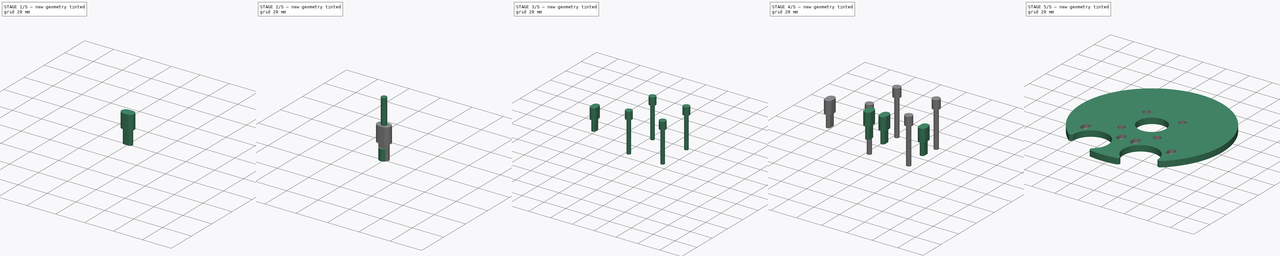
[diagram: build sequence overview — one tinted view per stage of 5, left to right]
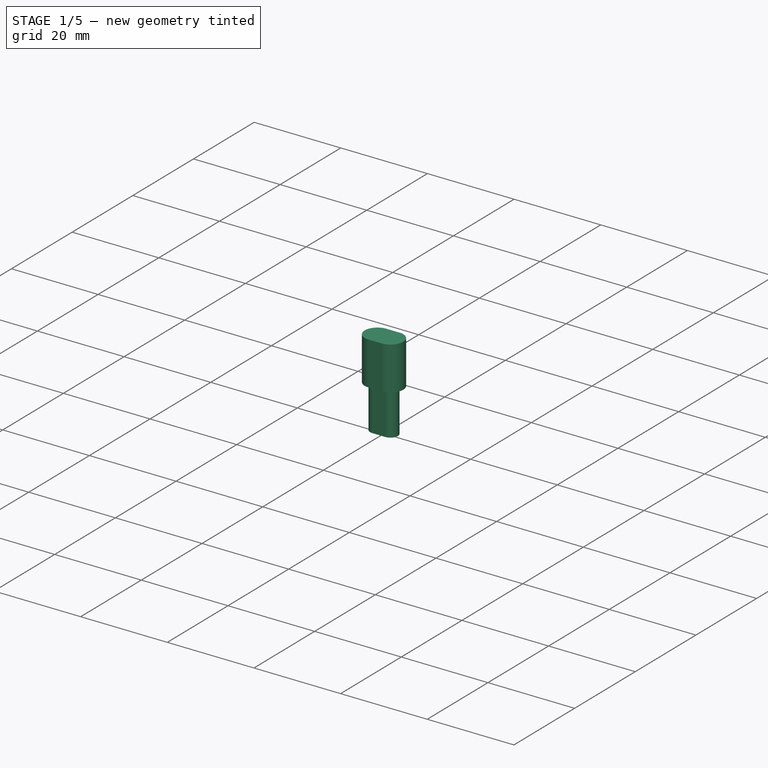
[diagram: stage 1 of 5 — iso view after this stage's code; geometry added in this stage tinted green]
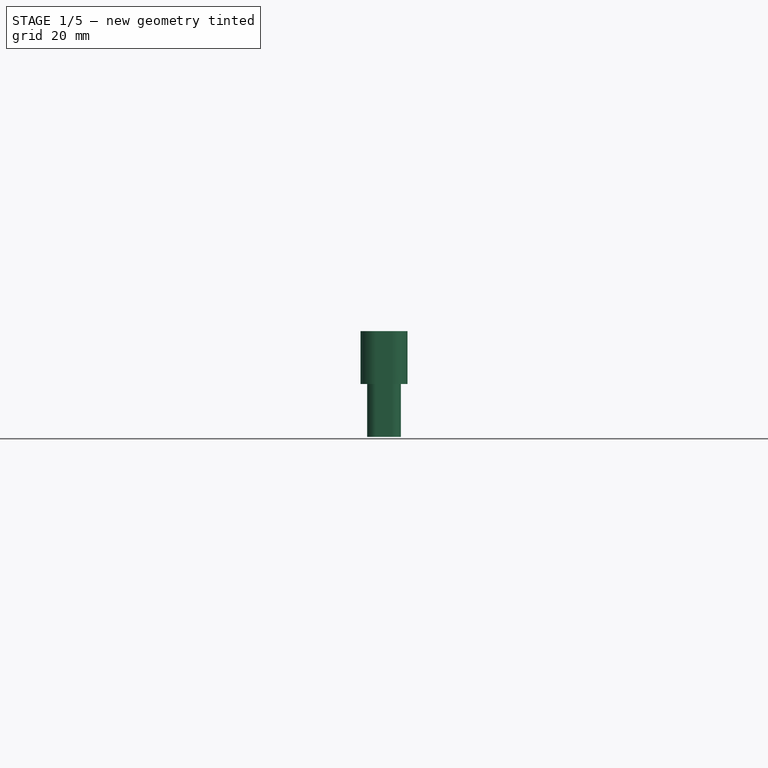
[diagram: stage 1 of 5 — front view after this stage's code; geometry added in this stage tinted green]
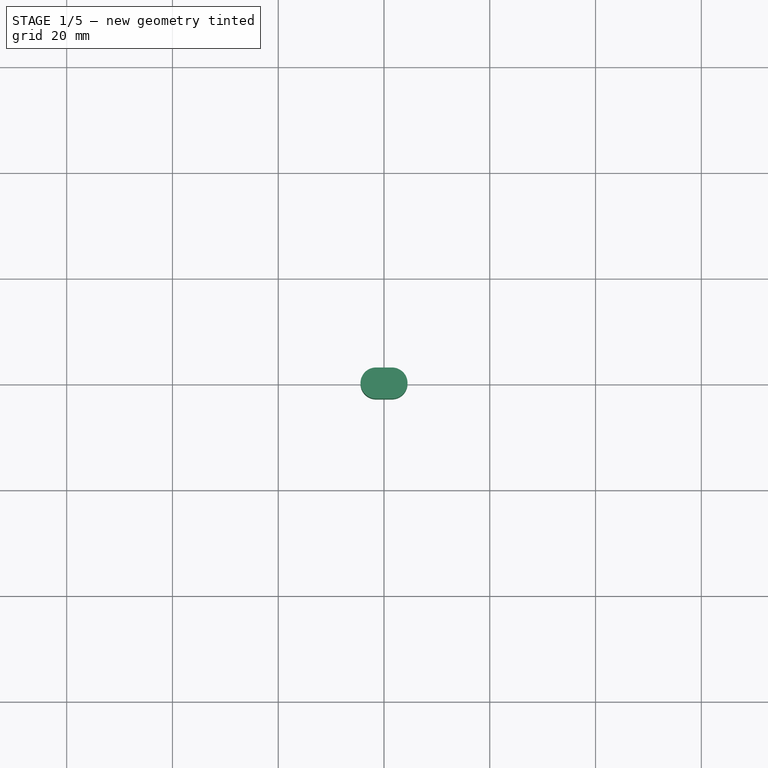
[diagram: stage 1 of 5 — top view after this stage's code; geometry added in this stage tinted green]
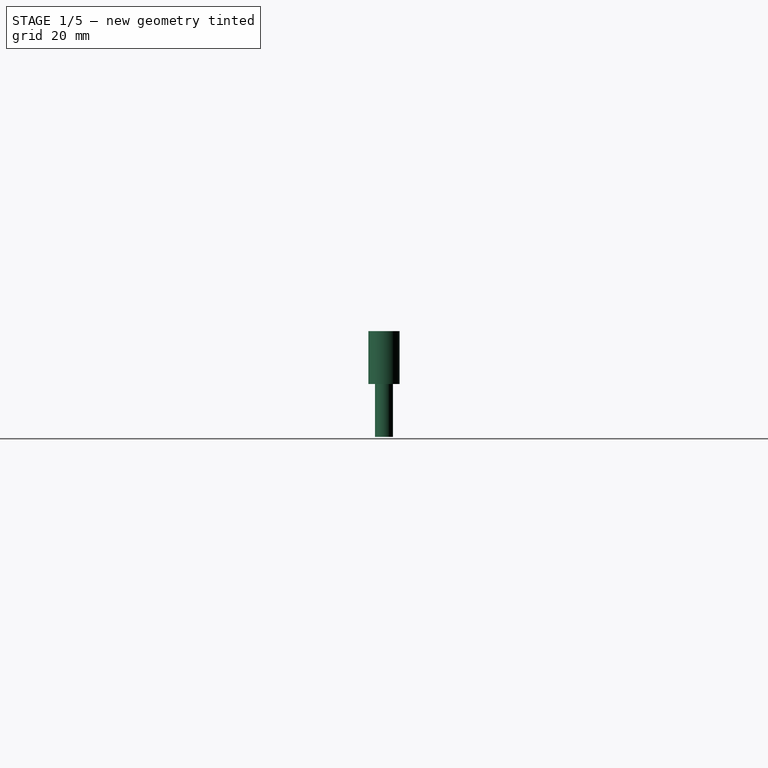
[diagram: stage 1 of 5 — right view after this stage's code; geometry added in this stage tinted green]
FCSTD DOCUMENT  (FreeCAD 0.16R6458 (Git))
Label: Art2BodyACover1
License: All rights reserved
LicenseURL: http://en.wikipedia.org/wiki/All_rights_reserved
objects: Part::FeaturePython×7, Part::MultiFuse×3, Sketcher::SketchObject×3, PartDesign::Pad×3, Part::Cylinder×2, Part::Cut×1, App::DocumentObjectGroup×1
note: 22 computed .brp shape members not serialized (recipe doc carries the construction recipe); baked Part::Feature solids carry a one-line shape summary decoded from their .brp

FEATURE [Sketcher::SketchObject] Sketch009
  sketch-geometry (4):
    g0: ArcOfCircle CenterX=-1.5 CenterY=0 CenterZ=0 NormalX=0 NormalY=0 NormalZ=1 Radius=1.7 StartAngle=1.5708 EndAngle=4.71239
    g1: ArcOfCircle CenterX=1.5 CenterY=0 CenterZ=0 NormalX=0 NormalY=0 NormalZ=1 Radius=1.7 StartAngle=4.71239 EndAngle=7.85398
    g2: LineSegment StartX=-1.5 StartY=-1.7 StartZ=0 EndX=1.5 EndY=-1.7 EndZ=0
    g3: LineSegment StartX=-1.5 StartY=1.7 StartZ=0 EndX=1.5 EndY=1.7 EndZ=0
  constraints (10):
    c: Tangent(g0,g3) = 1.5708
    c: Tangent(g0,g2) = -1.5708
    c: Tangent(g2,g1) = -1.5708
    c: Tangent(g3,g1) = 1.5708
    c: Horizontal(g2)
    c: Equal(g0,g1)
    c: Radius(g0) = 1.7
    c: DistanceX(g0,g1) = 3
    c: PointOnObject(g0,g-1)
    c: DistanceX(g-1,g0) = -1.5
FEATURE [PartDesign::Pad] Pad006  label="M3BoltSlider"
  Length = 10
  Length2 = 100
  Sketch = -> Sketch009
  Type = 0
FEATURE [Part::FeaturePython] Clone040  label="Clone of M3BoltSlider003"  # Draft clone (typed FeaturePython)
  Objects = -> [Pad006]
  Scale = (1,1,1)
FEATURE [Sketcher::SketchObject] Sketch010
  Placement = pos=(0,0,10) rot=(0,0,1;0rad)
  sketch-geometry (4):
    g0: ArcOfCircle CenterX=-1.5 CenterY=0 CenterZ=0 NormalX=0 NormalY=0 NormalZ=1 Radius=2.95 StartAngle=1.5708 EndAngle=4.71239
    g1: ArcOfCircle CenterX=1.5 CenterY=0 CenterZ=0 NormalX=0 NormalY=0 NormalZ=1 Radius=2.95 StartAngle=4.71239 EndAngle=7.85398
    g2: LineSegment StartX=-1.5 StartY=-2.95 StartZ=0 EndX=1.5 EndY=-2.95 EndZ=0
    g3: LineSegment StartX=-1.5 StartY=2.95 StartZ=0 EndX=1.5 EndY=2.95 EndZ=0
  constraints (10):
    c: Tangent(g0,g3) = 1.5708
    c: Tangent(g0,g2) = -1.5708
    c: Tangent(g2,g1) = -1.5708
    c: Tangent(g3,g1) = 1.5708
    c: Horizontal(g2)
    c: Equal(g0,g1)
    c: Radius(g0) = 2.95
    c: DistanceX(g0,g1) = 3
    c: PointOnObject(g0,g-1)
    c: DistanceX(g-1,g0) = -1.5
FEATURE [PartDesign::Pad] Pad007  label="M3BoltSliderHead"
  Length = 10
  Length2 = 100
  Placement = pos=(0,0,10) rot=(0,0,1;0rad)
  Sketch = -> Sketch010
  Type = 0
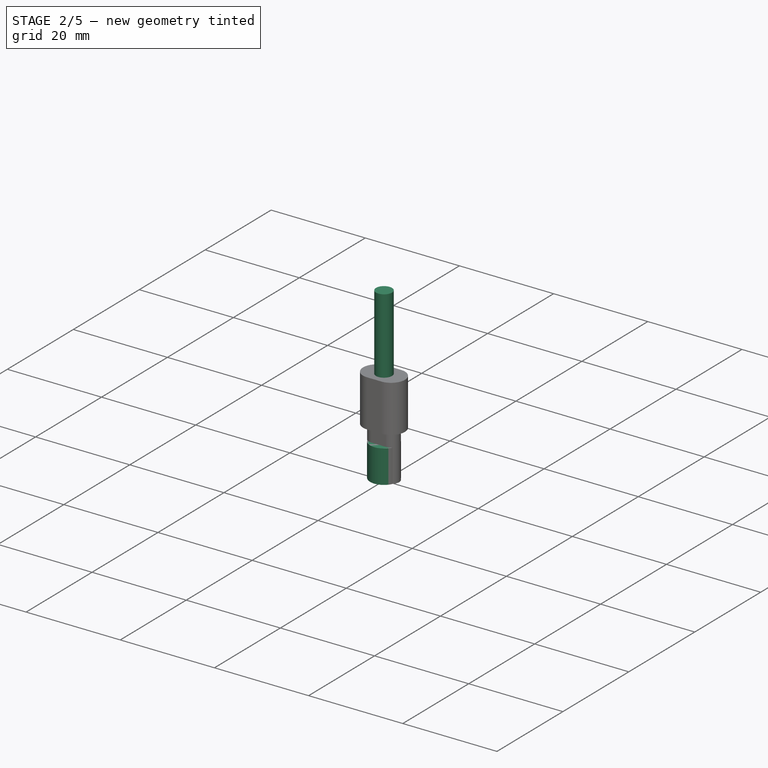
[diagram: stage 2 of 5 — iso view after this stage's code; geometry added in this stage tinted green]
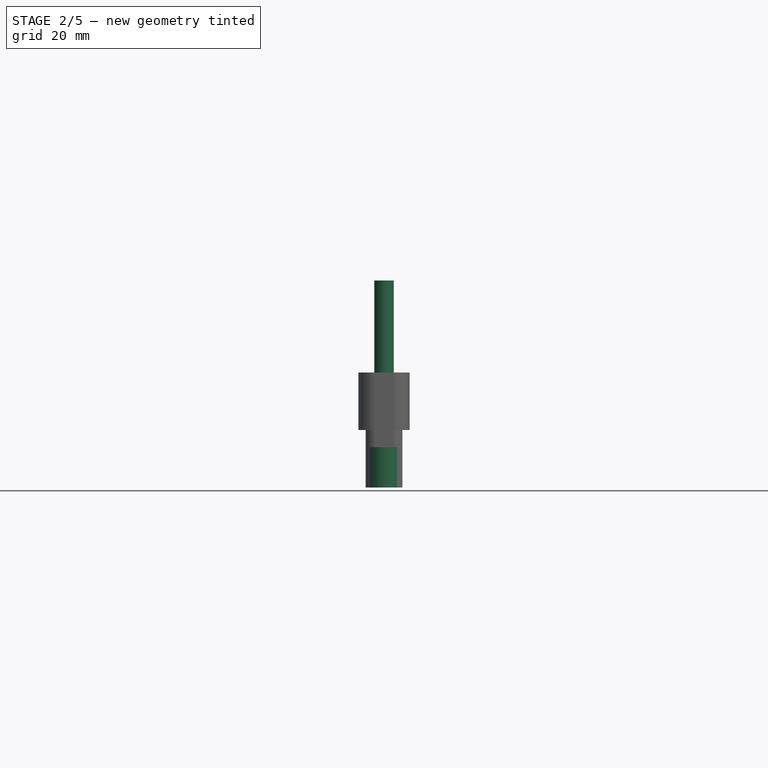
[diagram: stage 2 of 5 — front view after this stage's code; geometry added in this stage tinted green]
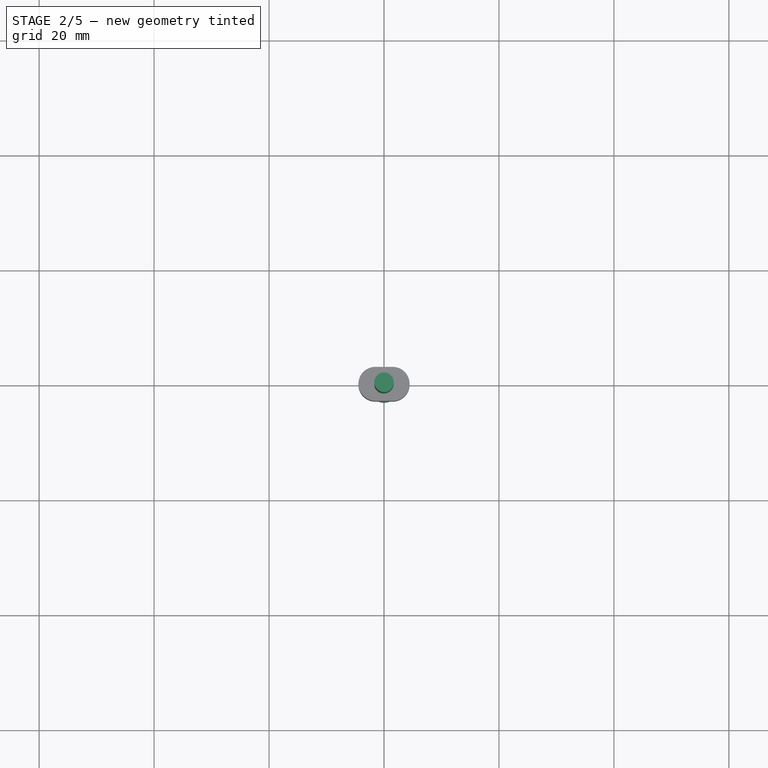
[diagram: stage 2 of 5 — top view after this stage's code; geometry added in this stage tinted green]
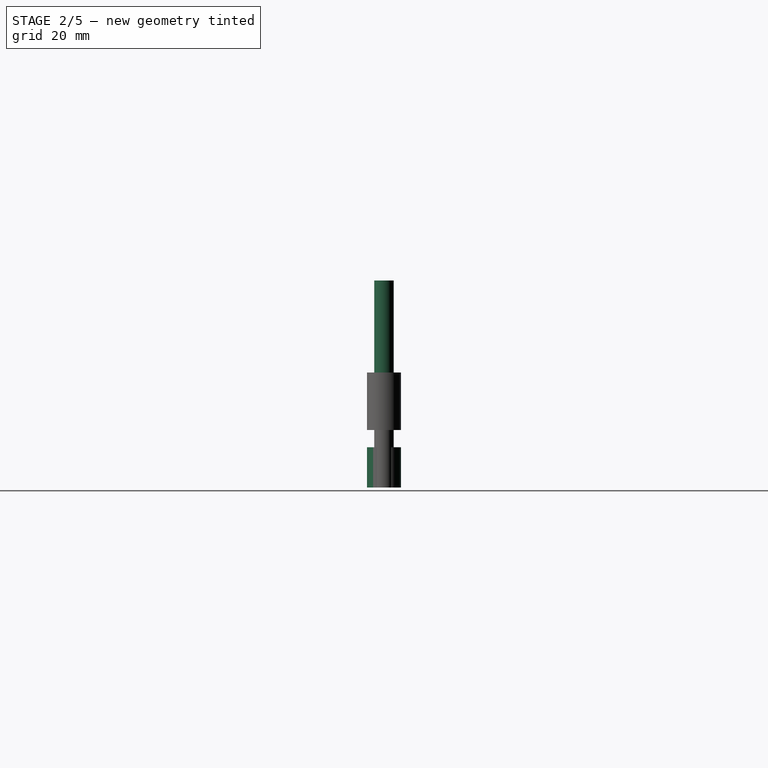
[diagram: stage 2 of 5 — right view after this stage's code; geometry added in this stage tinted green]
FEATURE [Part::Cylinder] Cylinder  label="M3BoltHead"
  Angle = 360
  Height = 7
  Radius = 2.95
FEATURE [Part::Cylinder] Cylinder001  label="M3BoltBody"
  Angle = 360
  Height = 30
  Placement = pos=(0,0,6) rot=(0,0,1;0rad)
  Radius = 1.7
FEATURE [Part::MultiFuse] Fusion015  label="M3BoldSliderWithHead"
  Shapes = -> [Pad007,Clone040]
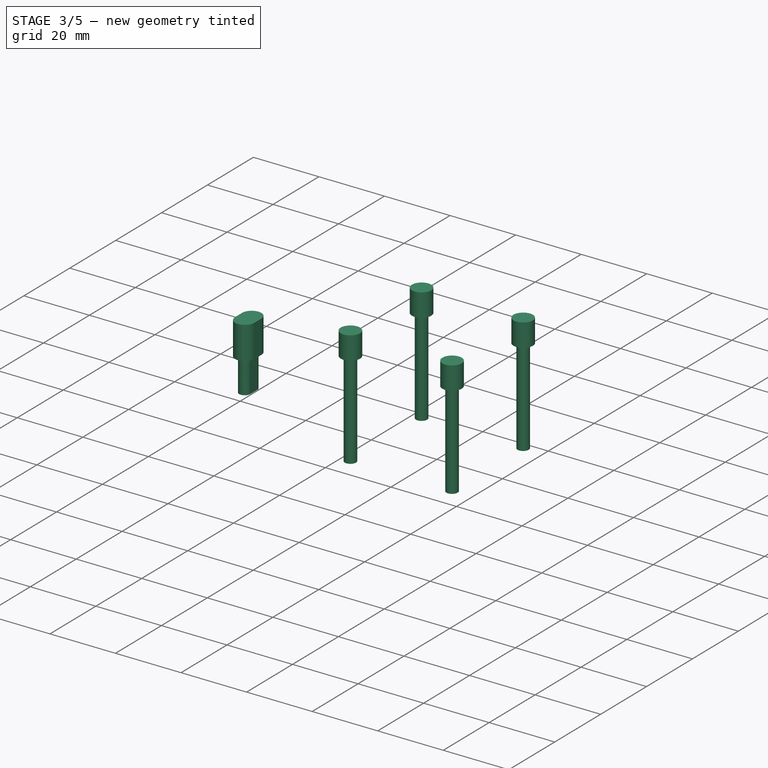
[diagram: stage 3 of 5 — iso view after this stage's code; geometry added in this stage tinted green]
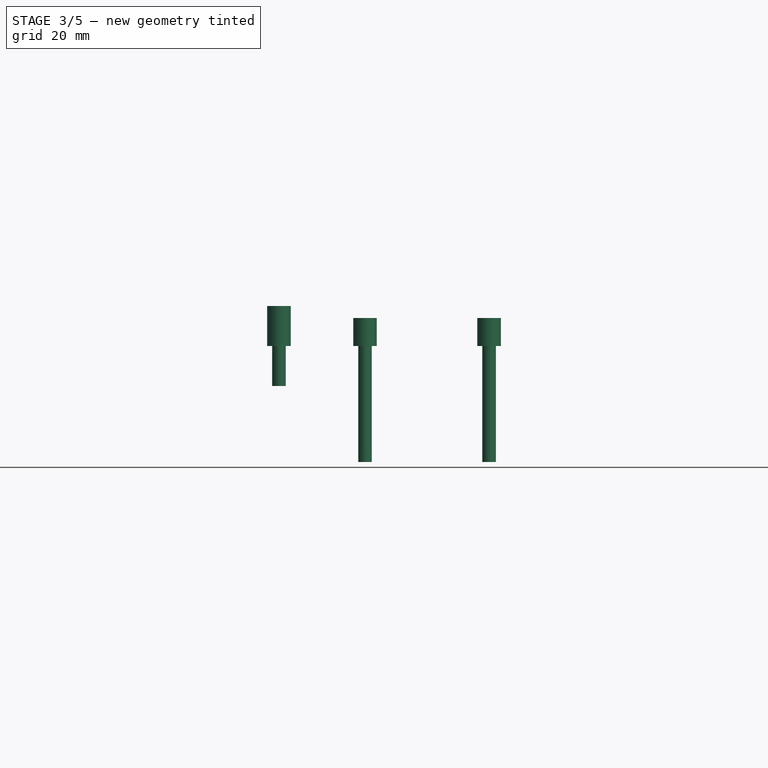
[diagram: stage 3 of 5 — front view after this stage's code; geometry added in this stage tinted green]
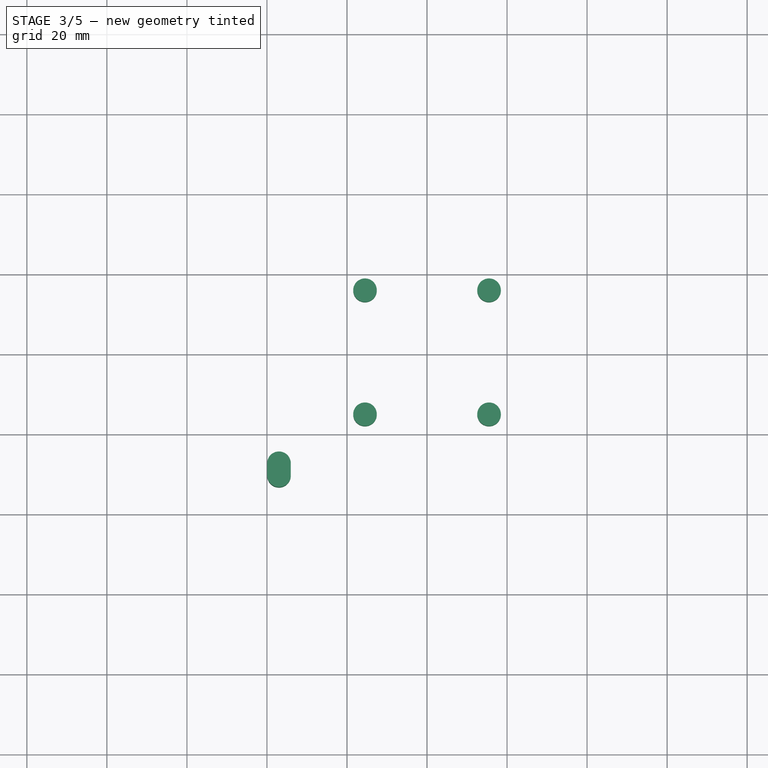
[diagram: stage 3 of 5 — top view after this stage's code; geometry added in this stage tinted green]
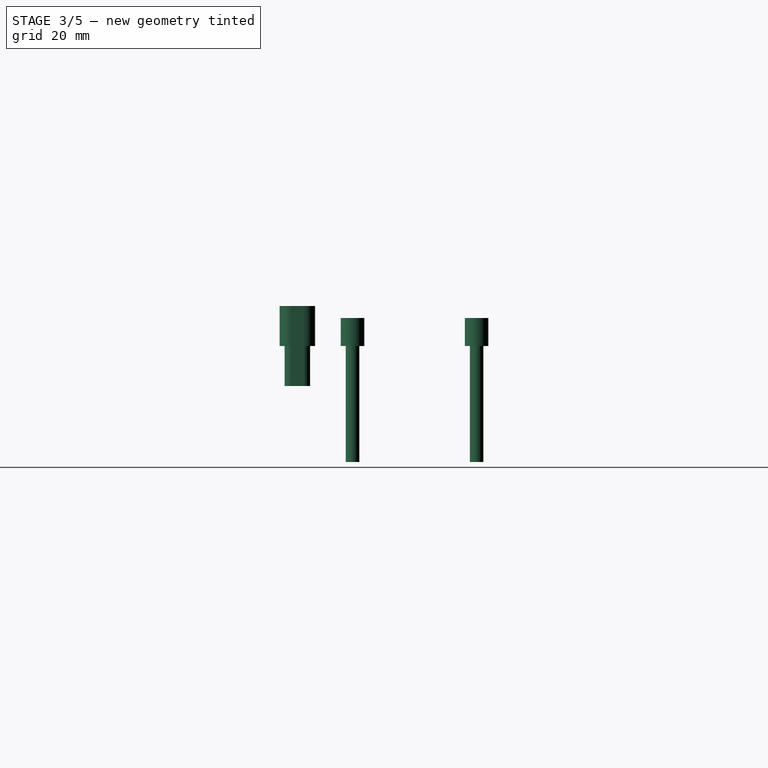
[diagram: stage 3 of 5 — right view after this stage's code; geometry added in this stage tinted green]
FEATURE [Part::MultiFuse] Fusion  label="M3Bolt"
  Shapes = -> [Cylinder001,Cylinder]
FEATURE [Part::FeaturePython] Clone085  label="Clone of M3BoldSliderWithHead016"  # Draft clone (typed FeaturePython)
  Objects = -> [Fusion015]
  Placement = pos=(-37,-29.3,-8) rot=(0,0,1;1.5708rad)
  Scale = (1,1,1)
FEATURE [Part::FeaturePython] Clone444  label="Clone of M3Bolt"  # Draft clone (typed FeaturePython)
  Objects = -> [Fusion]
  Placement = pos=(15.5,15.5,9) rot=(0,1,0;3.14159rad)
  Scale = (1,1,1)
FEATURE [Part::FeaturePython] Array  # Draft array (typed FeaturePython)
  Angle = 360
  ArrayType = 1
  Axis = (0,0,1)
  Base = -> Clone444
  Center = (0,0,0)
  Fuse = false
  IntervalAxis = (0,0,0)
  IntervalX = (1,0,0)
  IntervalY = (0,1,0)
  IntervalZ = (0,0,0)
  NumberPolar = 4
  NumberX = 2
  NumberY = 2
  NumberZ = 1
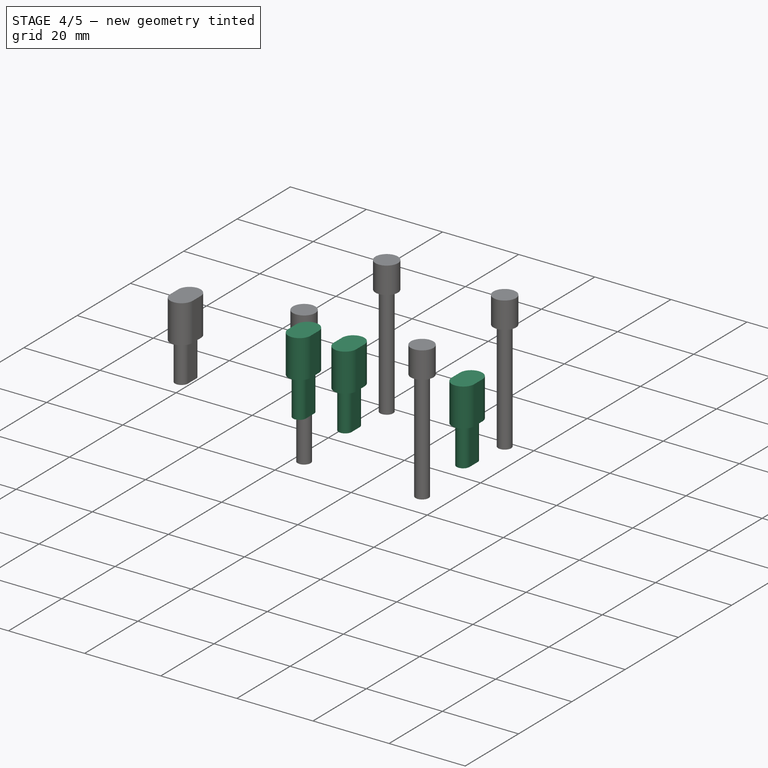
[diagram: stage 4 of 5 — iso view after this stage's code; geometry added in this stage tinted green]
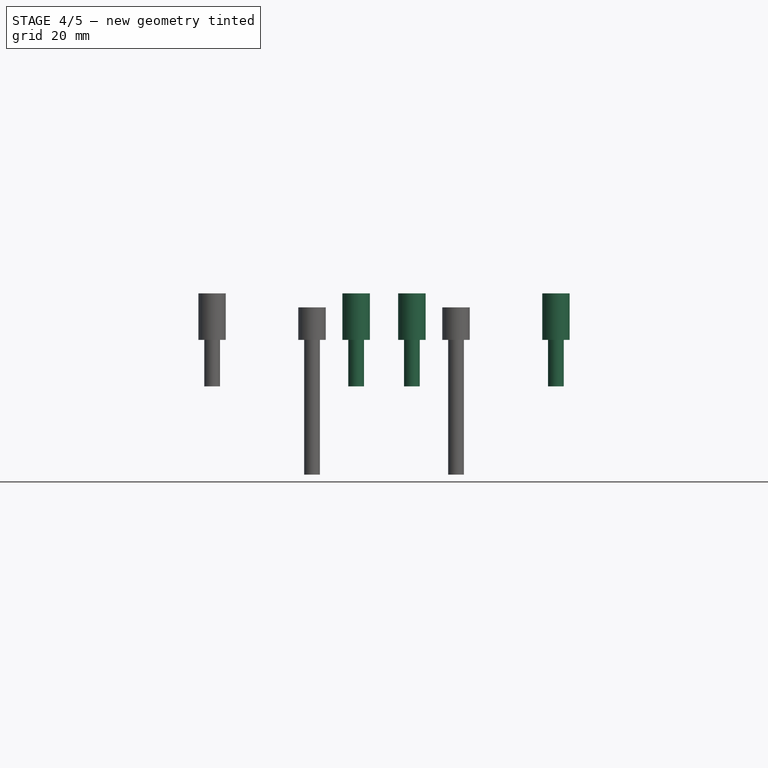
[diagram: stage 4 of 5 — front view after this stage's code; geometry added in this stage tinted green]
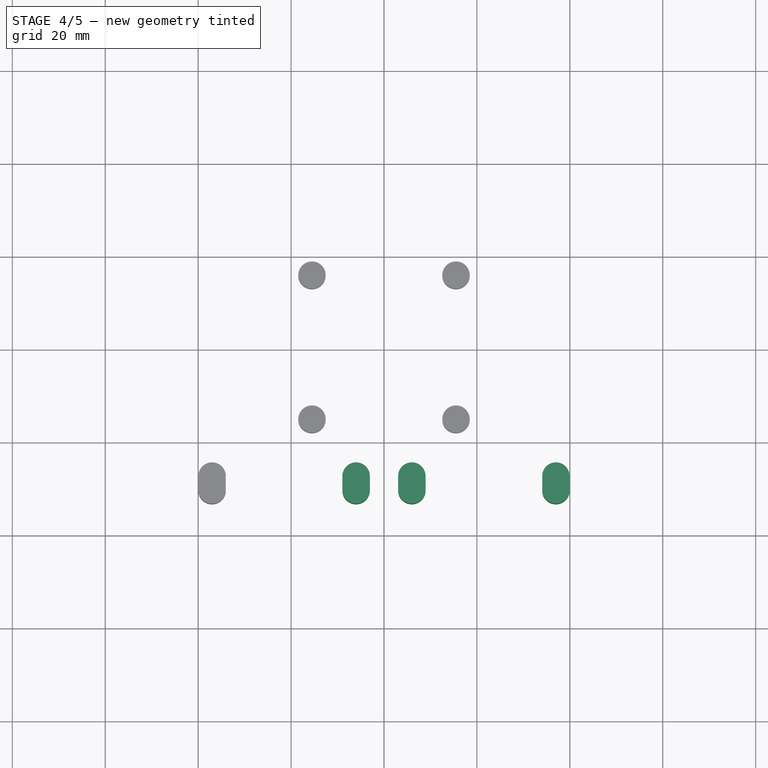
[diagram: stage 4 of 5 — top view after this stage's code; geometry added in this stage tinted green]
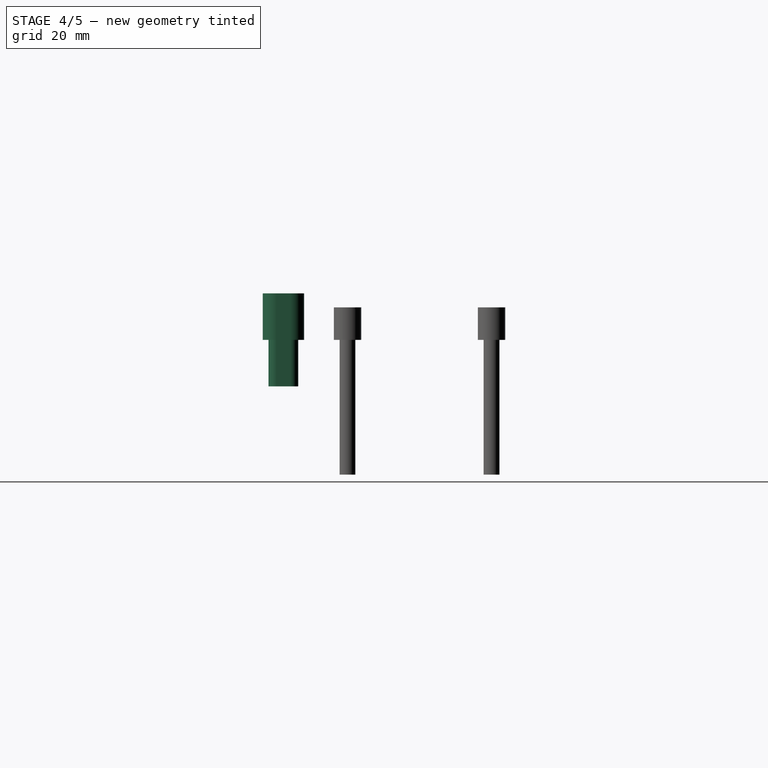
[diagram: stage 4 of 5 — right view after this stage's code; geometry added in this stage tinted green]
FEATURE [Part::FeaturePython] Clone080  label="Clone of M3BoldSliderWithHead011"  # Draft clone (typed FeaturePython)
  Objects = -> [Fusion015]
  Placement = pos=(37,-29.3,-8) rot=(0,0,1;1.5708rad)
  Scale = (1,1,1)
FEATURE [Part::FeaturePython] Clone081  label="Clone of M3BoldSliderWithHead012"  # Draft clone (typed FeaturePython)
  Objects = -> [Fusion015]
  Placement = pos=(-6,-29.3,-8) rot=(0,0,1;1.5708rad)
  Scale = (1,1,1)
FEATURE [Part::FeaturePython] Clone084  label="Clone of M3BoldSliderWithHead015"  # Draft clone (typed FeaturePython)
  Objects = -> [Fusion015]
  Placement = pos=(6,-29.3,-8) rot=(0,0,1;1.5708rad)
  Scale = (1,1,1)
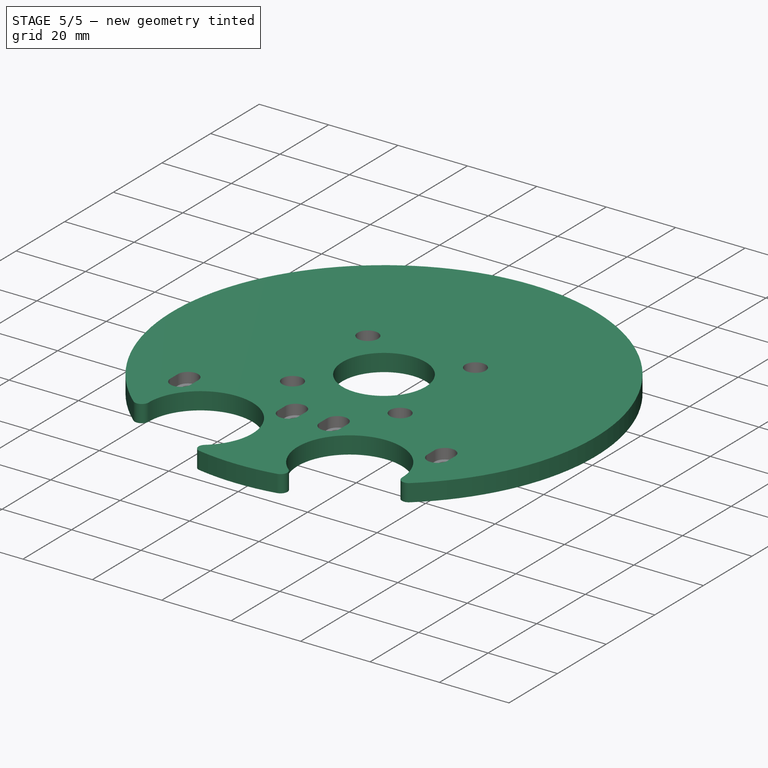
[diagram: stage 5 of 5 — iso view after this stage's code; geometry added in this stage tinted green]
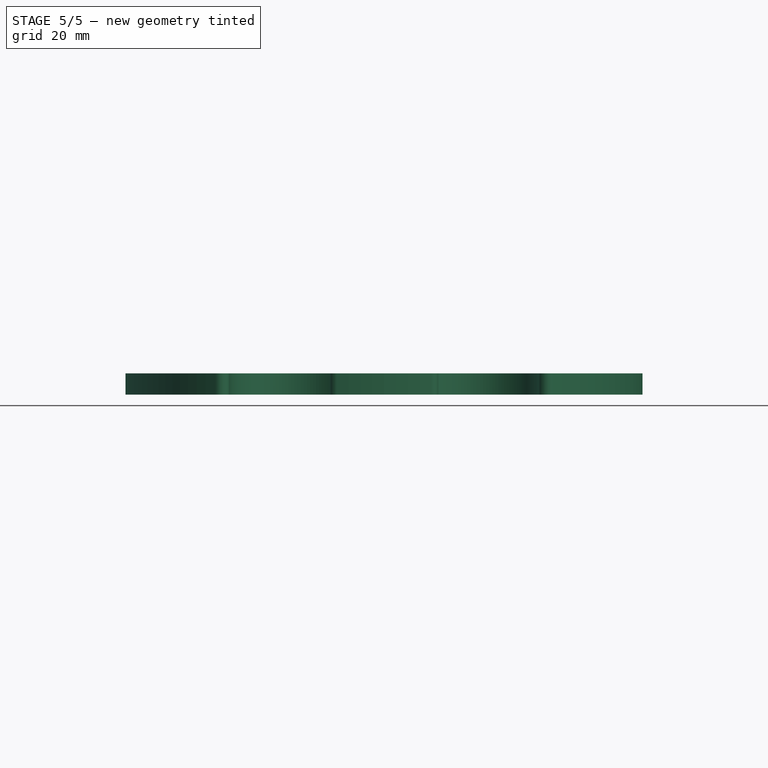
[diagram: stage 5 of 5 — front view after this stage's code; geometry added in this stage tinted green]
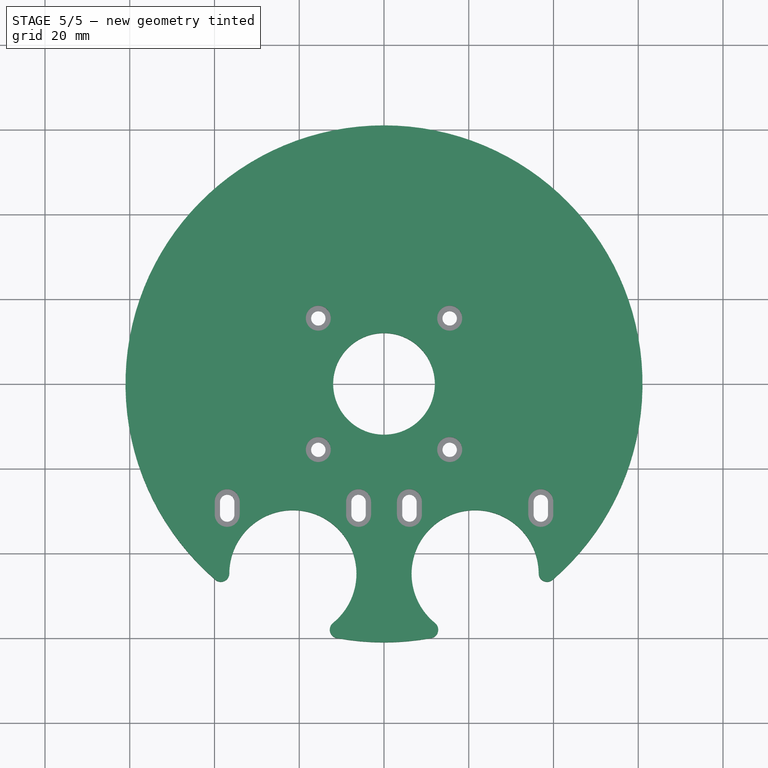
[diagram: stage 5 of 5 — top view after this stage's code; geometry added in this stage tinted green]
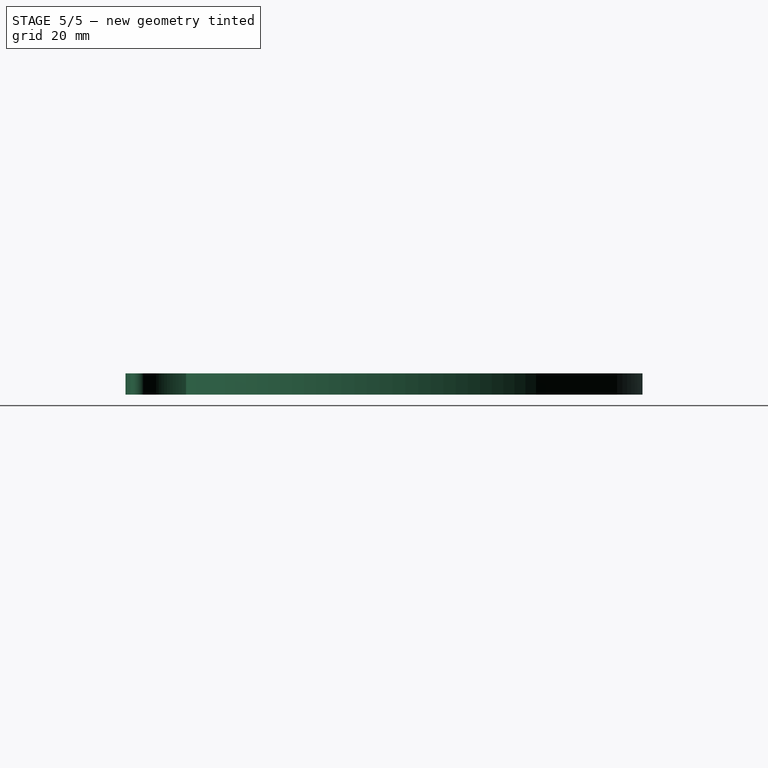
[diagram: stage 5 of 5 — right view after this stage's code; geometry added in this stage tinted green]
FEATURE [Sketcher::SketchObject] Sketch019
  sketch-geometry (9):
    g0: ArcOfCircle CenterX=0 CenterY=0 CenterZ=0 NormalX=0 NormalY=0 NormalZ=1 Radius=61 StartAngle=4.52842 EndAngle=4.89635
    g1: Circle CenterX=0 CenterY=0 CenterZ=0 NormalX=0 NormalY=0 NormalZ=1 Radius=12
    g2: ArcOfCircle CenterX=-21.5 CenterY=-44.8 CenterZ=0 NormalX=0 NormalY=0 NormalZ=1 Radius=15 StartAngle=5.39373 EndAngle=9.41934
    g3: ArcOfCircle CenterX=21.5 CenterY=-44.8 CenterZ=0 NormalX=0 NormalY=0 NormalZ=1 Radius=15 StartAngle=0.00543465 EndAngle=4.03105
    g4: ArcOfCircle CenterX=0 CenterY=0 CenterZ=0 NormalX=0 NormalY=0 NormalZ=1 Radius=61 StartAngle=5.42332 EndAngle=10.2846
    g5: ArcOfCircle CenterX=-38.4997 CenterY=-44.7076 CenterZ=0 NormalX=0 NormalY=0 NormalZ=1 Radius=2 StartAngle=4.00146 EndAngle=6.27774
    g6: ArcOfCircle CenterX=-10.7929 CenterY=-58.0044 CenterZ=0 NormalX=0 NormalY=0 NormalZ=1 Radius=2 StartAngle=2.25214 EndAngle=4.52842
    g7: ArcOfCircle CenterX=10.7929 CenterY=-58.0044 CenterZ=0 NormalX=0 NormalY=0 NormalZ=1 Radius=2 StartAngle=4.89635 EndAngle=7.17264
    g8: ArcOfCircle CenterX=38.4997 CenterY=-44.7076 CenterZ=0 NormalX=0 NormalY=0 NormalZ=1 Radius=2 StartAngle=3.14703 EndAngle=5.42332
  constraints (33):
    c: Coincident(g0,g-1)
    c: Coincident(g1,g-1)
    c: Radius(g1) = 12
    c: Radius(g0) = 61
    c: DistanceX(g-1,g2) = -21.5
    c: DistanceY(g-1,g2) = -44.8
    c: DistanceX(g-1,g3) = 21.5
    c: DistanceY(g-1,g3) = -44.8
    c: Equal(g3,g2)
    c: Radius(g3) = 15
    c: Equal(g0,g4)
    c: Coincident(g0,g4)
    c: PointOnObject(g5,g2)
    c: Coincident(g5,g2)
    c: Coincident(g4,g5)
    c: Tangent(g4,g5)
    c: Tangent(g5,g2)
    c: Radius(g5) = 2
    c: Coincident(g6,g0)
    c: Coincident(g6,g2)
    c: Tangent(g6,g2)
    c: Tangent(g6,g0)
    c: Radius(g6) = 2
    c: Coincident(g7,g3)
    c: Coincident(g7,g0)
    c: Tangent(g3,g7)
    c: Tangent(g0,g7)
    c: Radius(g7) = 2
    c: Coincident(g8,g3)
    c: Coincident(g8,g4)
    c: Tangent(g8,g3)
    c: Tangent(g4,g8)
    c: Radius(g8) = 2
FEATURE [PartDesign::Pad] Pad012
  Length = 5
  Length2 = 100
  Sketch = -> Sketch019
  Type = 0
FEATURE [Part::MultiFuse] Fusion169
  Shapes = -> [Array,Clone085,Clone084,Clone081,Clone080]
FEATURE [Part::Cut] Cut149  label="Art2BodyACover1"
  Base = -> Pad012
  Tool = -> Fusion169
FEATURE [App::DocumentObjectGroup] Group  label="Master"
  Group = -> [Fusion,Pad006,Fusion015]
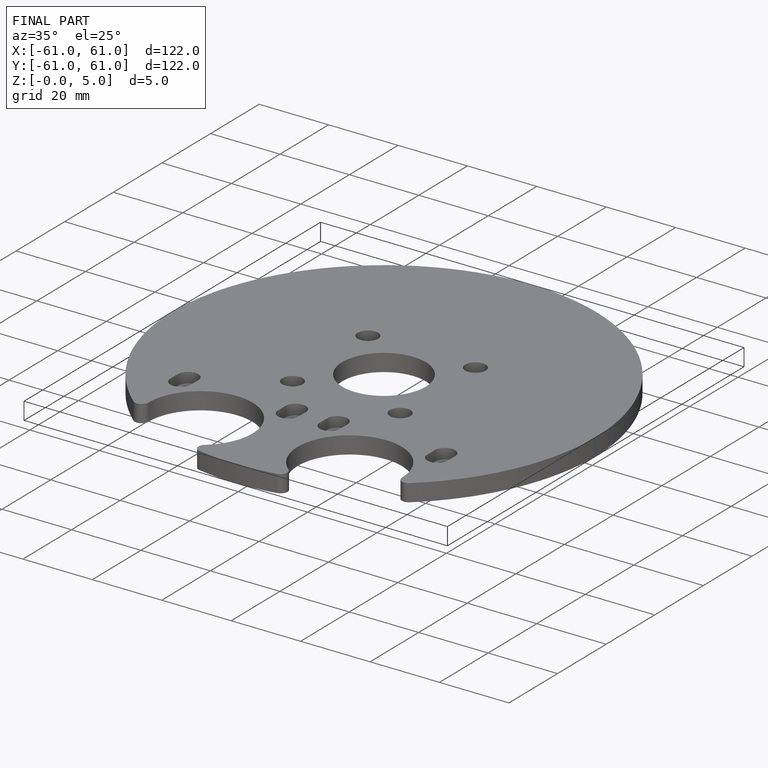
[diagram: finished part — iso view with bounding-box wireframe]
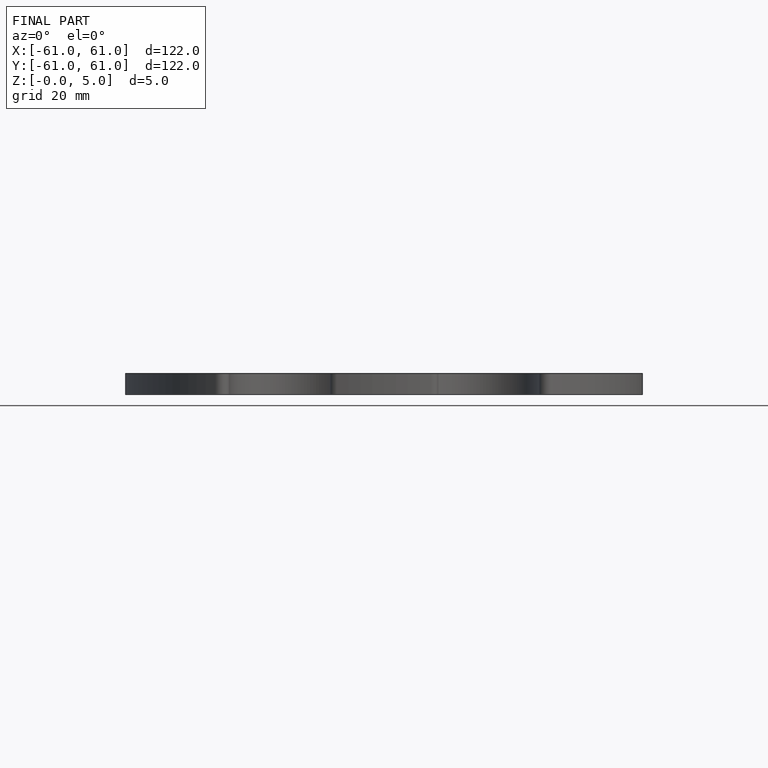
[diagram: finished part — front view with bounding-box wireframe]
